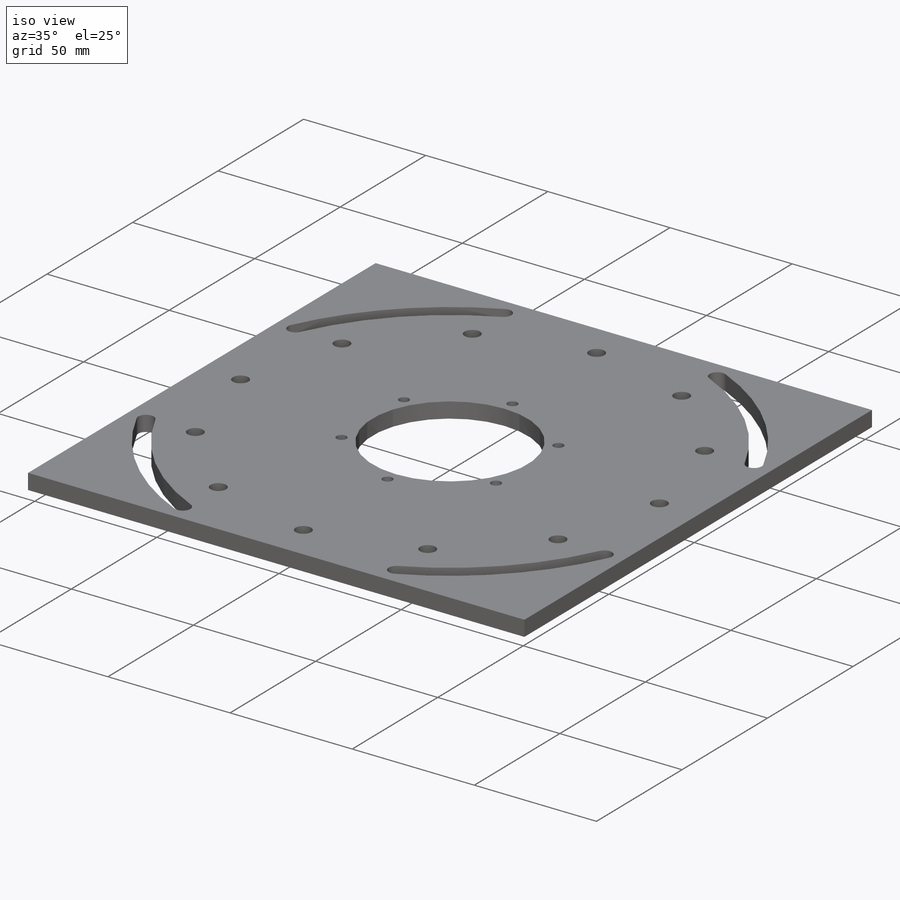
[diagram: iso view]
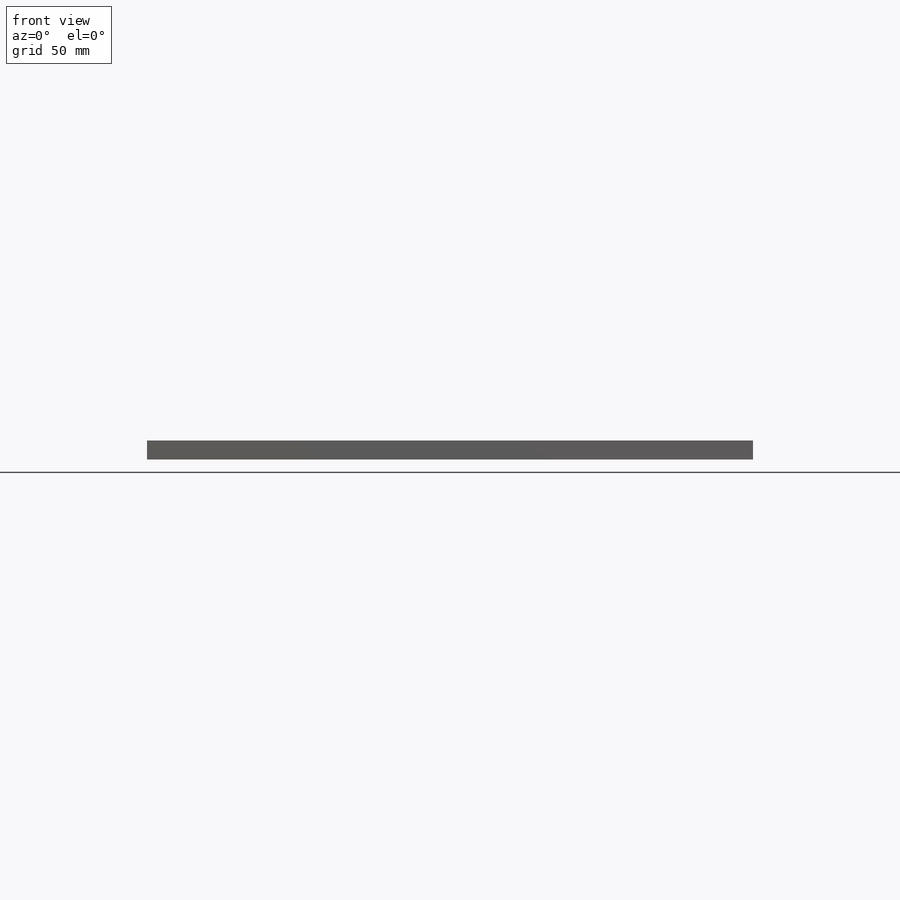
[diagram: front view]
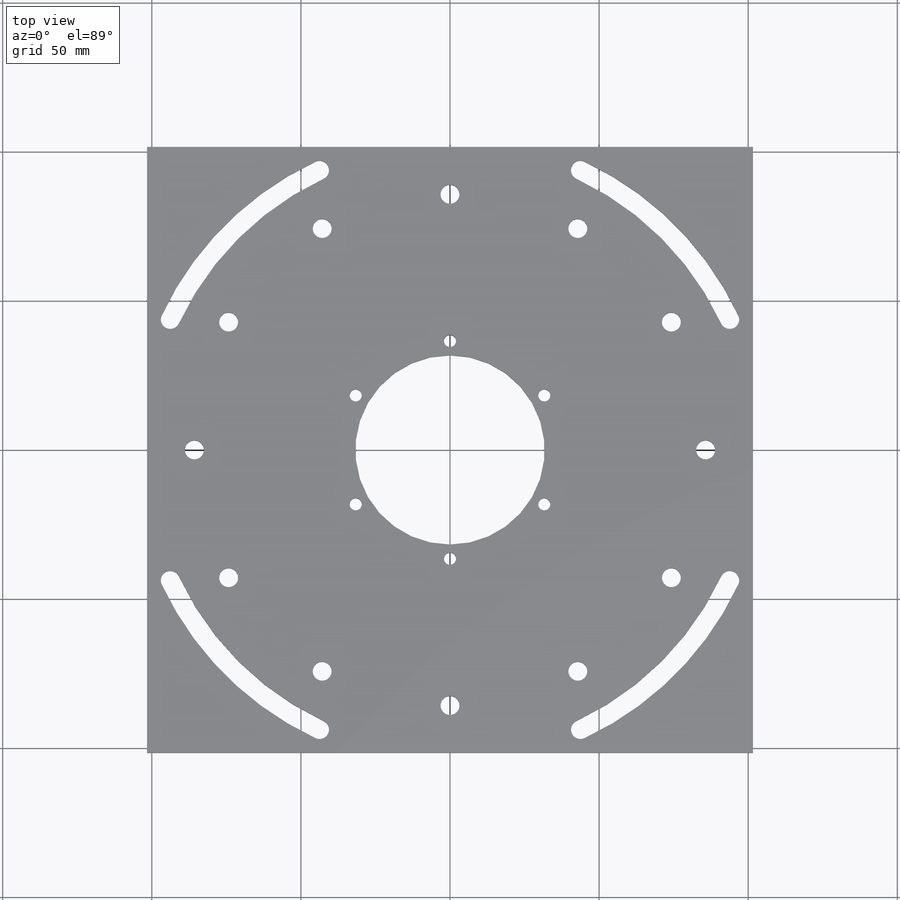
[diagram: top view]
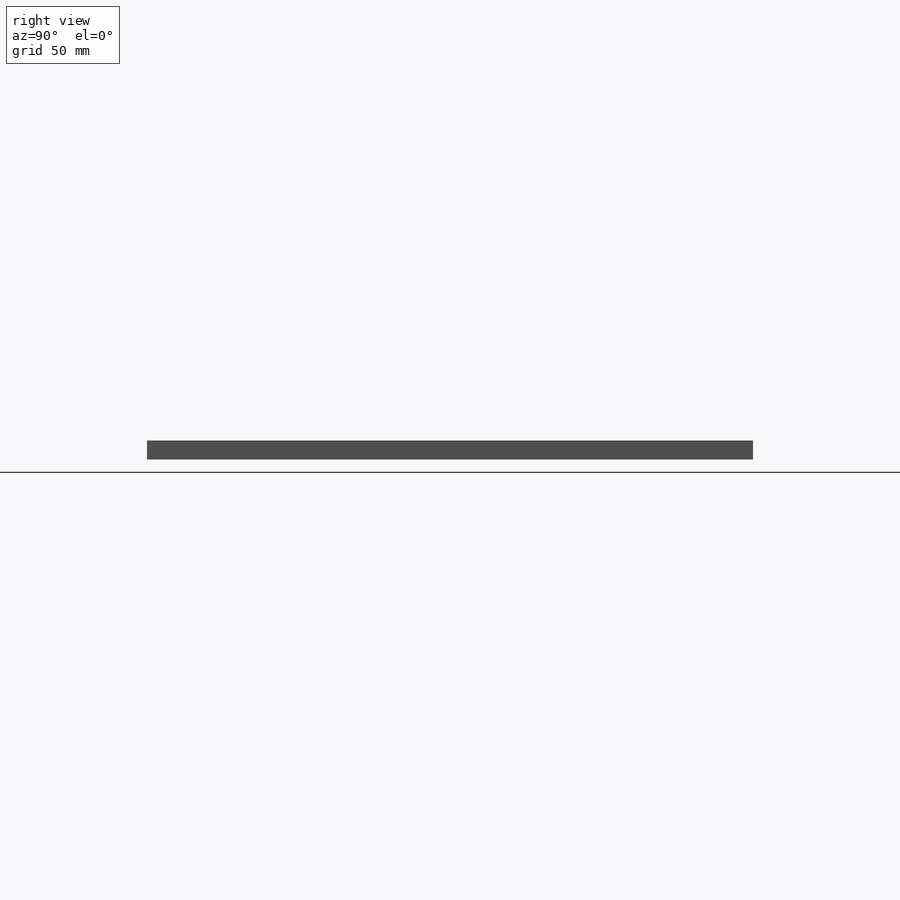
[diagram: right view]
SOLIDWORKS PART (.sldprt)
format: sldprt  version: not decoded by parser v0  size: 289,280 bytes
history: native  units: mm
features: sketch x7, cut_extrude x2, hole x2, pattern_circular x2, material x1, extrude x1 (+12 scaffold rows collapsed)
feature tree (27):
  scaffold x12  (default folders/planes/origin — collapsed)
  material  "Material <not specified>"
  sketch  "Sketch1"  dims[D1=203.2mm D2=203.2mm]
  extrude  "Boss-Extrude1"  Depth=6.35mm
  sketch  "Sketch2"  dims[D1=63.5mm]
  cut_extrude  "Cut-Extrude1"  [1 undecoded]
  hole  "1/4 (0.25) Diameter Hole1"  Diameter=6.35mm Depth=6.351mm
  sketch  "Sketch4"  dims[D1=171.45mm]
  sketch  "Sketch3"  dims[hole-wizard template sketch: 60 standard entries collapsed; hole parameters kept: c18.Thru Hole Depth=6.351mm]
  pattern_circular  "CirPattern1"  Count=12 Angle=30deg
  hole  "#10-32 Tapped Hole1"  Diameter=4.0386mm Depth=6.351mm
  sketch  "Sketch6"  dims[D1=36.5125mm]
  sketch  "Sketch5"  dims[hole-wizard template sketch: 59 standard entries collapsed; hole parameters kept: c18.Thread Major Dia.=4.0386mm c18.Thru Tap Drill Depth=6.351mm]
  pattern_circular  "CirPattern2"  Count=6 Angle=60deg
  sketch  "Sketch7"  dims[c1.D1=3.175mm c1.D4=103.505mm c1.D2=85.725mm c2.D2=45.0deg c2.D3=~88.91164mm c3.D3=30.0deg c4.D3=~88.789691mm c5.D3=40.0deg]
  cut_extrude  "Cut-Extrude2"  [1 undecoded]
decode coverage: 12 of 14 modeling features carry decoded parameters
note: ~ marks probable driven/reference dimensions
note: 2 parameter values undecoded
note: suppression state not decoded; provenance and decode notes live in map.json
